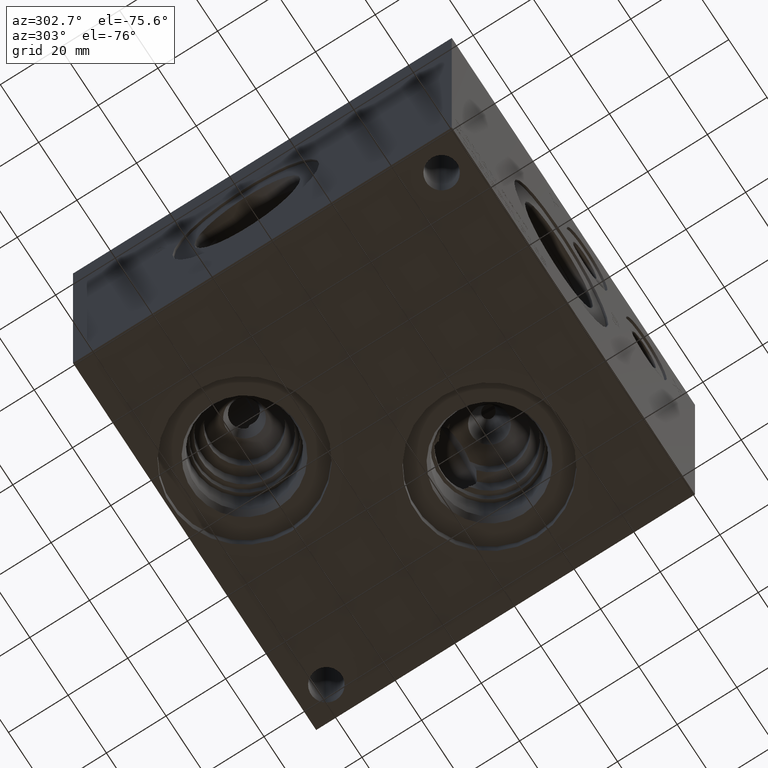
[diagram: clean part render]
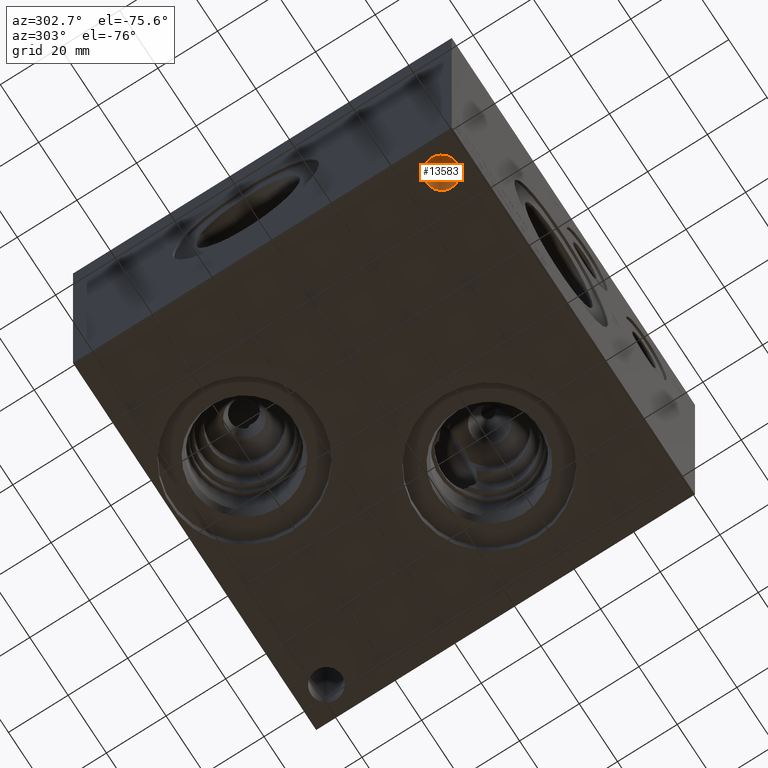
[diagram: same view with one face highlighted and labeled with its STEP entity id]
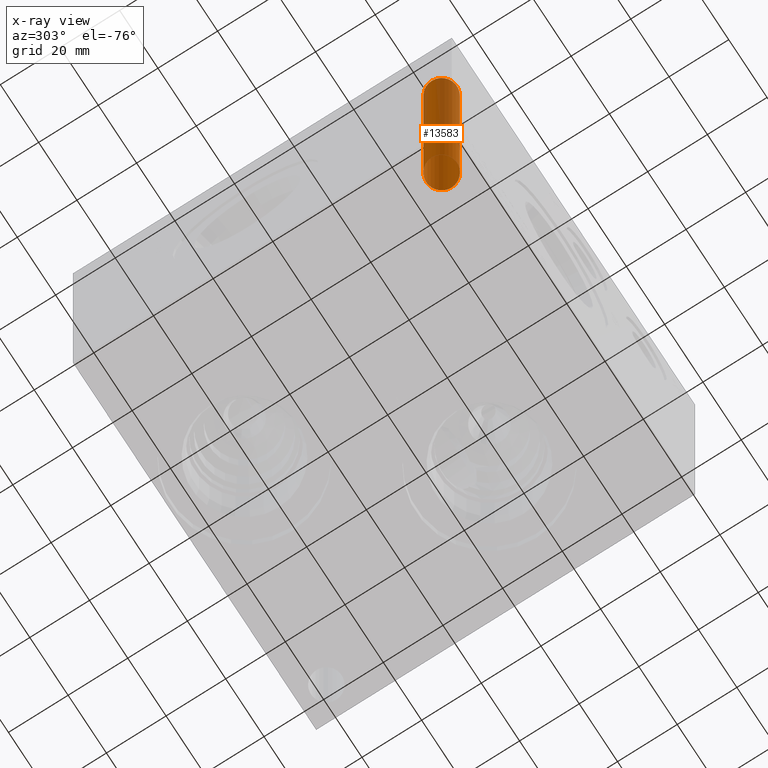
[diagram: x-ray of the same camera — body ghosted, the highlighted face saturated]
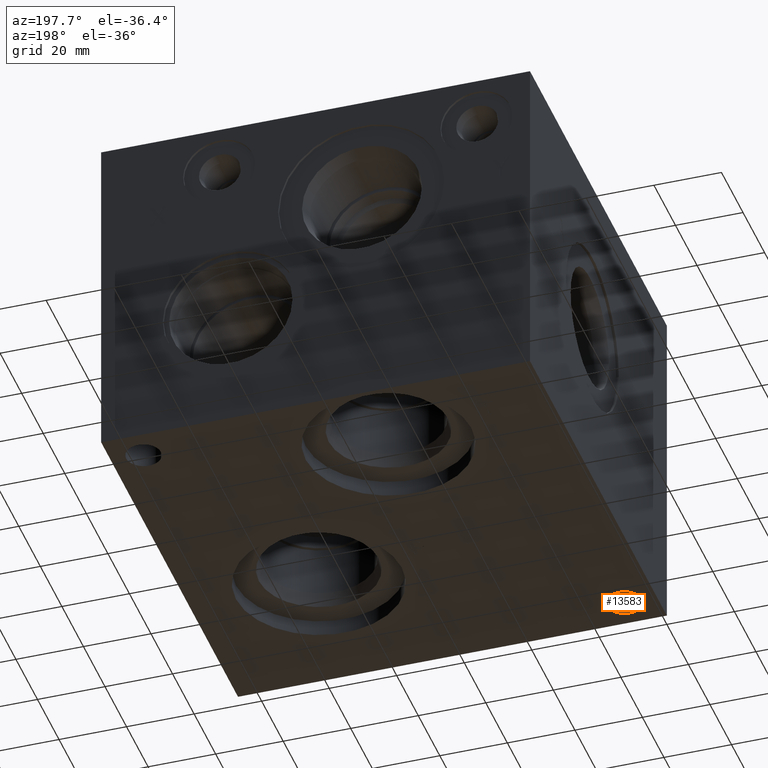
[diagram: same view with one face highlighted and labeled with its STEP entity id]
A machine part, auxiliary view. The second image highlights one B-rep face of the part: STEP entity #13583.
The next image is the same camera in x-ray: the body ghosted, the highlighted face saturated — about 37% of this face is hidden behind the body in this view.
A second angle (auxiliary view) of the same face is appended — the face is thin or edge-on in the first view.
In plain terms, the highlighted cylindrical surface (bore or boss wall) has radius 5.1562 mm, axis along (0, 0, 1).
Its self-contained STEP definition (entity closure, byte-faithful):
#97=CYLINDRICAL_SURFACE('',#14444,5.1562);
#173=CIRCLE('',#13618,5.1562);
#472=CIRCLE('',#14440,5.1562);
#1662=FACE_OUTER_BOUND('',#2445,.T.);
#2445=EDGE_LOOP('',(#12117,#12118,#12119,#12120));
#3715=LINE('',#23474,#4956);
#4956=VECTOR('',#17374,5.1562);
#5334=VERTEX_POINT('',#17619);
#6567=VERTEX_POINT('',#23465);
#6628=EDGE_CURVE('',#5334,#5334,#173,.T.);
#8448=EDGE_CURVE('',#6567,#6567,#472,.T.);
#8452=EDGE_CURVE('',#6567,#5334,#3715,.T.);
#12117=ORIENTED_EDGE('',*,*,#8448,.T.);
#12118=ORIENTED_EDGE('',*,*,#8452,.T.);
#12119=ORIENTED_EDGE('',*,*,#6628,.F.);
#12120=ORIENTED_EDGE('',*,*,#8452,.F.);
#13583=ADVANCED_FACE('',(#1662),#97,.F.);
#13618=AXIS2_PLACEMENT_3D('',#17620,#14519,#14520);
#14440=AXIS2_PLACEMENT_3D('',#23466,#17363,#17364);
#14444=AXIS2_PLACEMENT_3D('',#23473,#17372,#17373);
#14519=DIRECTION('center_axis',(0.,0.,1.));
#14520=DIRECTION('ref_axis',(1.,0.,0.));
#17363=DIRECTION('center_axis',(0.,0.,1.));
#17364=DIRECTION('ref_axis',(1.,0.,0.));
#17372=DIRECTION('center_axis',(0.,0.,1.));
#17373=DIRECTION('ref_axis',(1.,0.,0.));
#17374=DIRECTION('',(0.,0.,-1.));
#17619=CARTESIAN_POINT('',(4.3688,9.525,0.));
#17620=CARTESIAN_POINT('Origin',(9.525,9.525,0.));
#23465=CARTESIAN_POINT('',(4.3688,9.525,87.3252));
#23466=CARTESIAN_POINT('Origin',(9.525,9.525,87.3252));
#23473=CARTESIAN_POINT('Origin',(9.525,9.525,-104.750575477753));
#23474=CARTESIAN_POINT('',(4.3688,9.525,-104.750575477753));